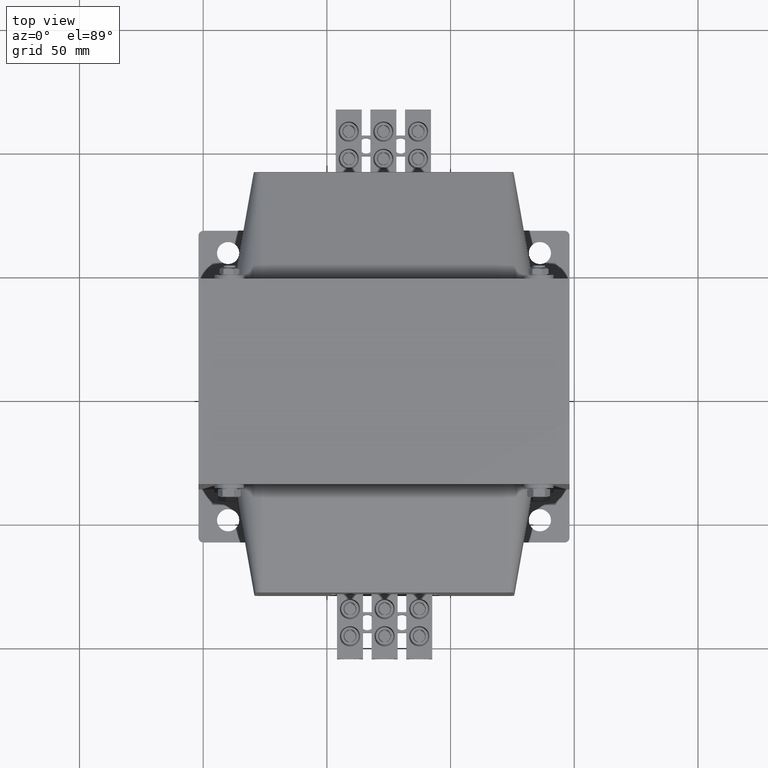
[diagram: clean part render]
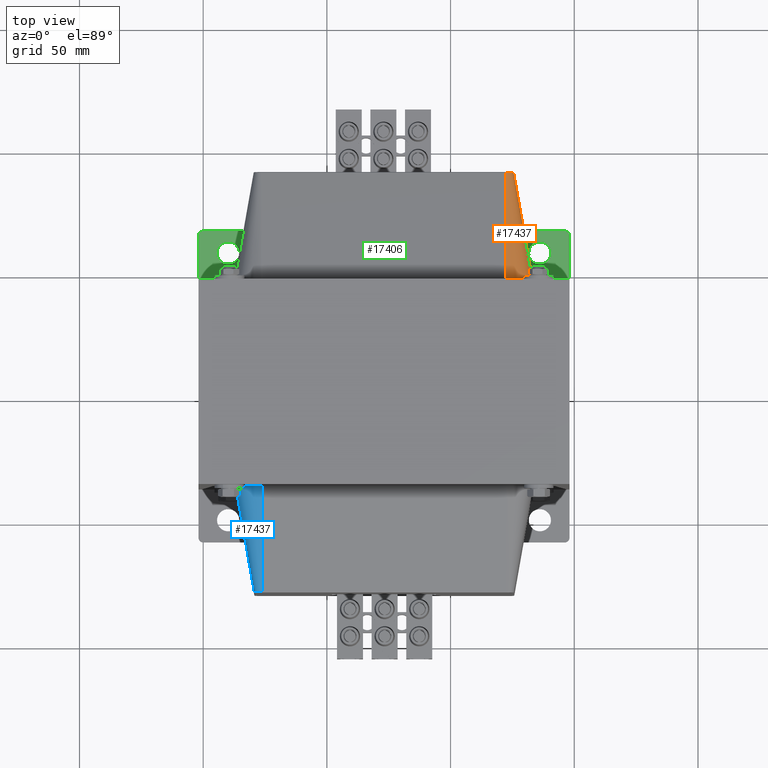
[diagram: same view with three faces highlighted in distinct colors, each labeled with its STEP entity id]
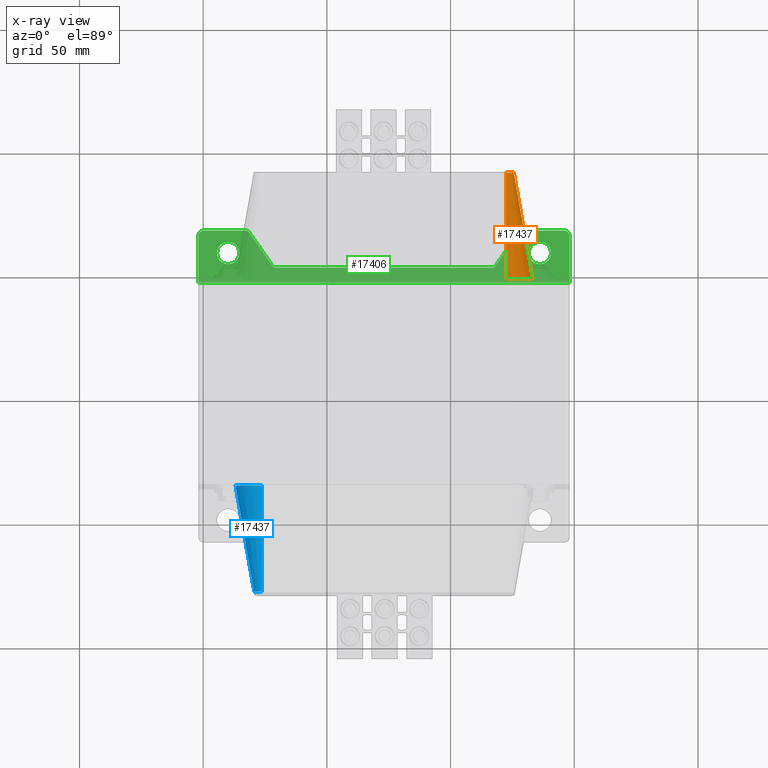
[diagram: x-ray of the same camera — body ghosted, the three highlighted faces saturated]
A machine part, top view with three faces highlighted in distinct colors.
The next image is the same camera in x-ray (body ghosted, the three faces saturated) — at least one of them is partly hidden behind the body in this view.
Their STEP definitions:

[orange] entity #17437 — the highlighted conical surface has half-angle 10 deg.
#611=CONICAL_SURFACE('',#19139,3.04800000000001,0.174532925199433);
#3344=LINE('',#39857,#5150);
#3345=LINE('',#39860,#5151);
#5150=VECTOR('',#23221,10.);
#5151=VECTOR('',#23224,10.);
#6234=FACE_OUTER_BOUND('',#7317,.T.);
#7317=EDGE_LOOP('',(#16228,#16229,#16230,#16231));
#7685=CIRCLE('',#19133,3.10351479441911);
#7689=CIRCLE('',#19140,10.6627088663991);
#9222=VERTEX_POINT('',#39829);
#9226=VERTEX_POINT('',#39841);
#9230=VERTEX_POINT('',#39856);
#9231=VERTEX_POINT('',#39858);
#11579=EDGE_CURVE('',#9222,#9226,#7685,.T.);
#11585=EDGE_CURVE('',#9222,#9230,#3344,.T.);
#11586=EDGE_CURVE('',#9231,#9230,#7689,.T.);
#11587=EDGE_CURVE('',#9226,#9231,#3345,.T.);
#16228=ORIENTED_EDGE('',*,*,#11579,.F.);
#16229=ORIENTED_EDGE('',*,*,#11585,.T.);
#16230=ORIENTED_EDGE('',*,*,#11586,.F.);
#16231=ORIENTED_EDGE('',*,*,#11587,.F.);
#17437=ADVANCED_FACE('',(#6234),#611,.T.);
#19133=AXIS2_PLACEMENT_3D('',#39845,#23205,#23206);
#19139=AXIS2_PLACEMENT_3D('',#39855,#23219,#23220);
#19140=AXIS2_PLACEMENT_3D('',#39859,#23222,#23223);
#23205=DIRECTION('center_axis',(0.,1.,0.));
#23206=DIRECTION('ref_axis',(-0.707106781186548,0.,0.707106781186548));
#23219=DIRECTION('center_axis',(0.,-1.,0.));
#23220=DIRECTION('ref_axis',(1.,-7.46724607323553E-32,-7.96832506669592E-64));
#23221=DIRECTION('',(-0.17364817766693,-0.984807753012208,0.));
#23222=DIRECTION('center_axis',(0.,-1.,0.));
#23223=DIRECTION('ref_axis',(-0.707106781186547,0.,0.707106781186547));
#23224=DIRECTION('',(0.,-0.984807753012208,0.17364817766693));
#39829=CARTESIAN_POINT('',(-102.342174965653,44.6851599556911,124.31091334525));
#39841=CARTESIAN_POINT('',(-99.2386601712335,44.6851599556911,127.414428139669));
#39845=CARTESIAN_POINT('Origin',(-99.2386601712335,44.6851599556911,124.31091334525));
#39855=CARTESIAN_POINT('Origin',(-99.2386601712335,45.,124.31091334525));
#39856=CARTESIAN_POINT('',(-109.901369037633,1.81484004430891,124.31091334525));
#39857=CARTESIAN_POINT('',(-102.286660171233,45.,124.31091334525));
#39858=CARTESIAN_POINT('',(-99.2386601712335,1.81484004430891,134.973622211649));
#39859=CARTESIAN_POINT('Origin',(-99.2386601712335,1.81484004430891,124.31091334525));
#39860=CARTESIAN_POINT('',(-99.2386601712335,45.,127.35891334525));

[blue] entity #17437 — the highlighted conical surface has half-angle 10 deg.
#611=CONICAL_SURFACE('',#19139,3.04800000000001,0.174532925199433);
#3344=LINE('',#39857,#5150);
#3345=LINE('',#39860,#5151);
#5150=VECTOR('',#23221,10.);
#5151=VECTOR('',#23224,10.);
#6234=FACE_OUTER_BOUND('',#7317,.T.);
#7317=EDGE_LOOP('',(#16228,#16229,#16230,#16231));
#7685=CIRCLE('',#19133,3.10351479441911);
#7689=CIRCLE('',#19140,10.6627088663991);
#9222=VERTEX_POINT('',#39829);
#9226=VERTEX_POINT('',#39841);
#9230=VERTEX_POINT('',#39856);
#9231=VERTEX_POINT('',#39858);
#11579=EDGE_CURVE('',#9222,#9226,#7685,.T.);
#11585=EDGE_CURVE('',#9222,#9230,#3344,.T.);
#11586=EDGE_CURVE('',#9231,#9230,#7689,.T.);
#11587=EDGE_CURVE('',#9226,#9231,#3345,.T.);
#16228=ORIENTED_EDGE('',*,*,#11579,.F.);
#16229=ORIENTED_EDGE('',*,*,#11585,.T.);
#16230=ORIENTED_EDGE('',*,*,#11586,.F.);
#16231=ORIENTED_EDGE('',*,*,#11587,.F.);
#17437=ADVANCED_FACE('',(#6234),#611,.T.);
#19133=AXIS2_PLACEMENT_3D('',#39845,#23205,#23206);
#19139=AXIS2_PLACEMENT_3D('',#39855,#23219,#23220);
#19140=AXIS2_PLACEMENT_3D('',#39859,#23222,#23223);
#23205=DIRECTION('center_axis',(0.,1.,0.));
#23206=DIRECTION('ref_axis',(-0.707106781186548,0.,0.707106781186548));
#23219=DIRECTION('center_axis',(0.,-1.,0.));
#23220=DIRECTION('ref_axis',(1.,-7.46724607323553E-32,-7.96832506669592E-64));
#23221=DIRECTION('',(-0.17364817766693,-0.984807753012208,0.));
#23222=DIRECTION('center_axis',(0.,-1.,0.));
#23223=DIRECTION('ref_axis',(-0.707106781186547,0.,0.707106781186547));
#23224=DIRECTION('',(0.,-0.984807753012208,0.17364817766693));
#39829=CARTESIAN_POINT('',(-102.342174965653,44.6851599556911,124.31091334525));
#39841=CARTESIAN_POINT('',(-99.2386601712335,44.6851599556911,127.414428139669));
#39845=CARTESIAN_POINT('Origin',(-99.2386601712335,44.6851599556911,124.31091334525));
#39855=CARTESIAN_POINT('Origin',(-99.2386601712335,45.,124.31091334525));
#39856=CARTESIAN_POINT('',(-109.901369037633,1.81484004430891,124.31091334525));
#39857=CARTESIAN_POINT('',(-102.286660171233,45.,124.31091334525));
#39858=CARTESIAN_POINT('',(-99.2386601712335,1.81484004430891,134.973622211649));
#39859=CARTESIAN_POINT('Origin',(-99.2386601712335,1.81484004430891,124.31091334525));
#39860=CARTESIAN_POINT('',(-99.2386601712335,45.,127.35891334525));

[green] entity #17406 — the highlighted planar face has unit normal (0, 0, 1).
#905=FACE_BOUND('',#7282,.T.);
#906=FACE_BOUND('',#7283,.T.);
#1569=PLANE('',#19074);
#3274=LINE('',#39629,#5080);
#3278=LINE('',#39641,#5084);
#3282=LINE('',#39653,#5088);
#3287=LINE('',#39671,#5093);
#3288=LINE('',#39674,#5094);
#3292=LINE('',#39680,#5098);
#3293=LINE('',#39682,#5099);
#3297=LINE('',#39692,#5103);
#5080=VECTOR('',#22977,10.);
#5084=VECTOR('',#22989,10.);
#5088=VECTOR('',#23001,10.);
#5093=VECTOR('',#23020,10.);
#5094=VECTOR('',#23023,10.);
#5098=VECTOR('',#23029,10.);
#5099=VECTOR('',#23032,10.);
#5103=VECTOR('',#23044,10.);
#6203=FACE_OUTER_BOUND('',#7281,.T.);
#7281=EDGE_LOOP('',(#16072,#16073,#16074,#16075,#16076,#16077,#16078,#16079,
#16080,#16081,#16082,#16083,#16084,#16085));
#7282=EDGE_LOOP('',(#16086));
#7283=EDGE_LOOP('',(#16087));
#7638=CIRCLE('',#19042,4.5);
#7640=CIRCLE('',#19045,2.00000000000001);
#7642=CIRCLE('',#19048,2.);
#7644=CIRCLE('',#19051,2.00000000000001);
#7646=CIRCLE('',#19055,1.99999999999999);
#7648=CIRCLE('',#19059,2.00000000000001);
#7650=CIRCLE('',#19063,1.99999999999998);
#7652=CIRCLE('',#19066,4.5);
#9145=VERTEX_POINT('',#39594);
#9148=VERTEX_POINT('',#39601);
#9149=VERTEX_POINT('',#39603);
#9152=VERTEX_POINT('',#39610);
#9153=VERTEX_POINT('',#39612);
#9156=VERTEX_POINT('',#39619);
#9157=VERTEX_POINT('',#39621);
#9159=VERTEX_POINT('',#39627);
#9161=VERTEX_POINT('',#39633);
#9163=VERTEX_POINT('',#39639);
#9165=VERTEX_POINT('',#39645);
#9167=VERTEX_POINT('',#39651);
#9169=VERTEX_POINT('',#39657);
#9171=VERTEX_POINT('',#39663);
#9173=VERTEX_POINT('',#39669);
#9174=VERTEX_POINT('',#39673);
#11456=EDGE_CURVE('',#9145,#9145,#7638,.T.);
#11459=EDGE_CURVE('',#9149,#9148,#7640,.T.);
#11463=EDGE_CURVE('',#9153,#9152,#7642,.T.);
#11467=EDGE_CURVE('',#9157,#9156,#7644,.T.);
#11471=EDGE_CURVE('',#9156,#9159,#3274,.T.);
#11474=EDGE_CURVE('',#9159,#9161,#7646,.T.);
#11477=EDGE_CURVE('',#9161,#9163,#3278,.T.);
#11480=EDGE_CURVE('',#9163,#9165,#7648,.T.);
#11483=EDGE_CURVE('',#9165,#9167,#3282,.T.);
#11486=EDGE_CURVE('',#9167,#9169,#7650,.T.);
#11489=EDGE_CURVE('',#9171,#9171,#7652,.T.);
#11492=EDGE_CURVE('',#9173,#9148,#3287,.T.);
#11493=EDGE_CURVE('',#9174,#9153,#3288,.T.);
#11497=EDGE_CURVE('',#9152,#9157,#3292,.T.);
#11498=EDGE_CURVE('',#9169,#9149,#3293,.T.);
#11504=EDGE_CURVE('',#9173,#9174,#3297,.T.);
#16072=ORIENTED_EDGE('',*,*,#11459,.T.);
#16073=ORIENTED_EDGE('',*,*,#11492,.F.);
#16074=ORIENTED_EDGE('',*,*,#11504,.T.);
#16075=ORIENTED_EDGE('',*,*,#11493,.T.);
#16076=ORIENTED_EDGE('',*,*,#11463,.T.);
#16077=ORIENTED_EDGE('',*,*,#11497,.T.);
#16078=ORIENTED_EDGE('',*,*,#11467,.T.);
#16079=ORIENTED_EDGE('',*,*,#11471,.T.);
#16080=ORIENTED_EDGE('',*,*,#11474,.T.);
#16081=ORIENTED_EDGE('',*,*,#11477,.T.);
#16082=ORIENTED_EDGE('',*,*,#11480,.T.);
#16083=ORIENTED_EDGE('',*,*,#11483,.T.);
#16084=ORIENTED_EDGE('',*,*,#11486,.T.);
#16085=ORIENTED_EDGE('',*,*,#11498,.T.);
#16086=ORIENTED_EDGE('',*,*,#11456,.T.);
#16087=ORIENTED_EDGE('',*,*,#11489,.T.);
#17406=ADVANCED_FACE('',(#6203,#905,#906),#1569,.T.);
#19042=AXIS2_PLACEMENT_3D('',#39596,#22947,#22948);
#19045=AXIS2_PLACEMENT_3D('',#39604,#22954,#22955);
#19048=AXIS2_PLACEMENT_3D('',#39613,#22962,#22963);
#19051=AXIS2_PLACEMENT_3D('',#39622,#22970,#22971);
#19055=AXIS2_PLACEMENT_3D('',#39635,#22983,#22984);
#19059=AXIS2_PLACEMENT_3D('',#39647,#22995,#22996);
#19063=AXIS2_PLACEMENT_3D('',#39659,#23007,#23008);
#19066=AXIS2_PLACEMENT_3D('',#39665,#23014,#23015);
#19074=AXIS2_PLACEMENT_3D('',#39691,#23042,#23043);
#22947=DIRECTION('center_axis',(1.,-5.88757721582026E-17,-4.25706252347957E-16));
#22948=DIRECTION('ref_axis',(7.40148683083438E-16,4.44089209850063E-16,
1.));
#22954=DIRECTION('center_axis',(-1.,5.88757721582026E-17,4.25706252347957E-16));
#22955=DIRECTION('ref_axis',(0.,-3.05311331771916E-16,-1.));
#22962=DIRECTION('center_axis',(-1.,5.88757721582026E-17,4.25706252347957E-16));
#22963=DIRECTION('ref_axis',(0.,1.,-3.05311331771918E-16));
#22970=DIRECTION('center_axis',(-1.,5.88757721582026E-17,4.25706252347957E-16));
#22971=DIRECTION('ref_axis',(0.,0.573462344363328,-0.81923192051904));
#22977=DIRECTION('',(-2.92359417378791E-16,-0.819231920519041,-0.573462344363327));
#22983=DIRECTION('center_axis',(1.,-5.88757721582026E-17,-4.25706252347957E-16));
#22984=DIRECTION('ref_axis',(0.,0.573462344363327,-0.819231920519041));
#22989=DIRECTION('',(-4.25706252347957E-16,-1.63077487243684E-16,-1.));
#22995=DIRECTION('center_axis',(1.,-5.88757721582026E-17,-4.25706252347957E-16));
#22996=DIRECTION('ref_axis',(0.,1.,-4.44089209850063E-16));
#23001=DIRECTION('',(-1.9588684553583E-16,0.819242036942153,-0.573447892058967));
#23007=DIRECTION('center_axis',(-1.,5.88757721582026E-17,4.25706252347957E-16));
#23008=DIRECTION('ref_axis',(0.,1.,-2.70894418008538E-14));
#23014=DIRECTION('center_axis',(1.,-5.88757721582026E-17,-4.25706252347957E-16));
#23015=DIRECTION('ref_axis',(0.,4.44089209850063E-16,1.));
#23020=DIRECTION('',(-2.43418491600441E-16,1.,-4.19986479686555E-16));
#23023=DIRECTION('',(5.1820858729406E-16,1.,-9.32890869976671E-15));
#23029=DIRECTION('',(-4.27319396913651E-16,-4.38654562293971E-16,-1.));
#23032=DIRECTION('',(-4.27319396913651E-16,-4.38654562293971E-16,-1.));
#23042=DIRECTION('center_axis',(-1.,5.88757721582026E-17,4.25706252347957E-16));
#23043=DIRECTION('ref_axis',(4.25706252347957E-16,-4.19917910082817E-16,
1.));
#23044=DIRECTION('',(4.25706252347957E-16,0.,1.));
#39594=CARTESIAN_POINT('',(-1.5,14.,7.49999999999999));
#39596=CARTESIAN_POINT('Origin',(-1.50000000000001,14.,12.));
#39601=CARTESIAN_POINT('',(-1.5,21.,0.));
#39603=CARTESIAN_POINT('',(-1.5,23.,1.99999999999998));
#39604=CARTESIAN_POINT('Origin',(-1.49999999999997,21.,1.99999999999998));
#39610=CARTESIAN_POINT('',(-1.49999999999994,23.0000000000001,148.));
#39612=CARTESIAN_POINT('',(-1.49999999999994,21.0000000000001,150.));
#39613=CARTESIAN_POINT('Origin',(-1.49999999999997,21.0000000000001,148.));
#39619=CARTESIAN_POINT('',(-1.49999999999994,22.1469246887267,129.402847282109));
#39621=CARTESIAN_POINT('',(-1.49999999999994,23.0000000000001,131.041311123147));
#39622=CARTESIAN_POINT('Origin',(-1.49999999999997,21.0000000000001,131.041311123147));
#39627=CARTESIAN_POINT('',(-1.49999999999995,8.85307531127335,120.097152717891));
#39629=CARTESIAN_POINT('',(-1.49999999999995,5.82478386465162,117.977348705256));
#39633=CARTESIAN_POINT('',(-1.49999999999995,8.00000000000001,118.458688876853));
#39635=CARTESIAN_POINT('Origin',(-1.49999999999997,10.,118.458688876853));
#39639=CARTESIAN_POINT('',(-1.49999999999999,7.99999999999999,31.5409392712036));
#39641=CARTESIAN_POINT('',(-1.49999999999996,8.,96.7293444384266));
#39645=CARTESIAN_POINT('',(-1.49999999999999,8.85310421588205,29.9024551973193));
#39647=CARTESIAN_POINT('Origin',(-1.49999999999997,9.99999999999999,31.5409392712036));
#39651=CARTESIAN_POINT('',(-1.49999999999999,22.1468957841179,20.5971505272485));
#39653=CARTESIAN_POINT('',(-1.49999999999999,-0.822054883717256,36.6748122552032));
#39657=CARTESIAN_POINT('',(-1.49999999999999,23.,18.9586664533642));
#39659=CARTESIAN_POINT('Origin',(-1.49999999999997,21.,18.9586664533643));
#39663=CARTESIAN_POINT('',(-1.49999999999994,14.0000000000001,133.5));
#39665=CARTESIAN_POINT('Origin',(-1.49999999999997,14.0000000000001,138.));
#39669=CARTESIAN_POINT('',(-1.5,2.,-1.35390469606159E-16));
#39671=CARTESIAN_POINT('',(-1.5,0.17787626091792,6.29876865124226E-16));
#39673=CARTESIAN_POINT('',(-1.49999999999994,2.,150.));
#39674=CARTESIAN_POINT('',(-1.49999999999994,0.17787626091792,150.));
#39680=CARTESIAN_POINT('',(-1.49999999999994,23.0000000000001,150.));
#39682=CARTESIAN_POINT('',(-1.49999999999994,23.0000000000001,150.));
#39691=CARTESIAN_POINT('Origin',(-1.49999999999997,11.588938130459,75.));
#39692=CARTESIAN_POINT('',(-1.49999999999997,2.,75.));